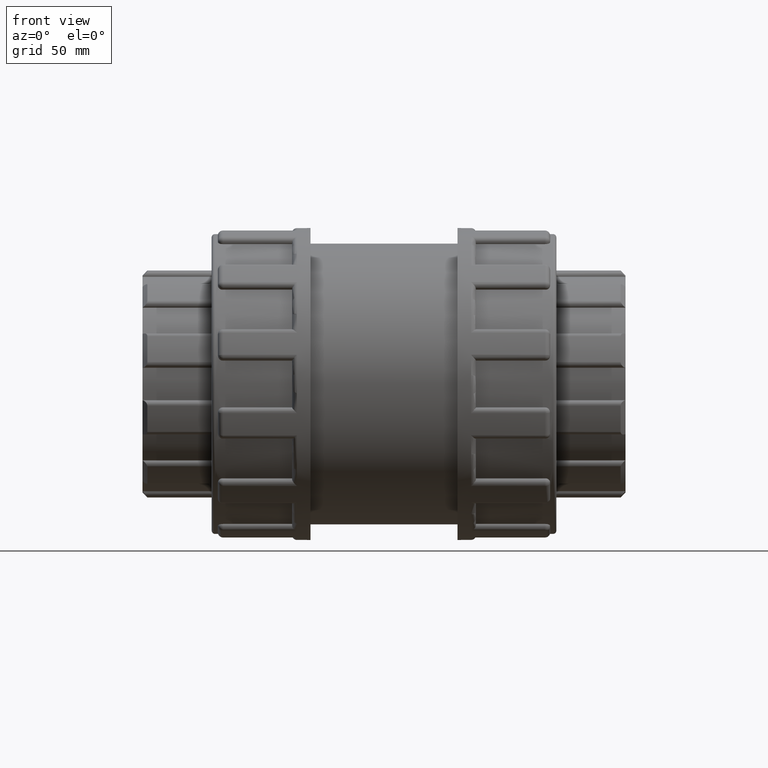
[diagram: clean part render]
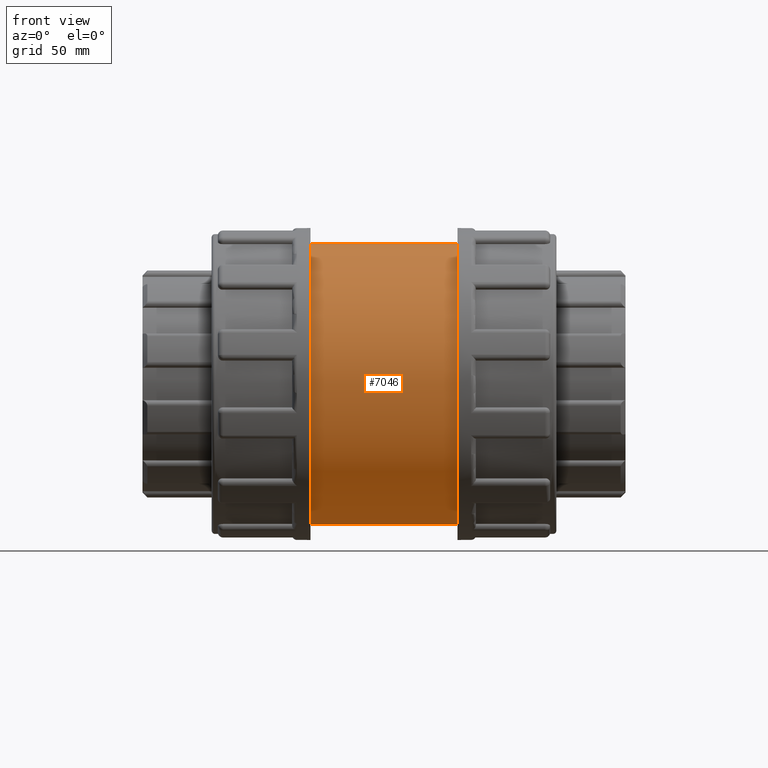
[diagram: same view with one face highlighted and labeled with its STEP entity id]
A machine part, front view. The second image highlights one B-rep face of the part: STEP entity #7046.
In plain terms, the highlighted cylindrical surface (bore or boss wall) has radius 62.55 mm, axis along (1, 0, 0).
Its self-contained STEP definition (entity closure, byte-faithful):
#103=B_SPLINE_CURVE_WITH_KNOTS('',3,(#11388,#11389,#11390,#11391,#11392,
#11393,#11394,#11395,#11396,#11397,#11398,#11399,#11400,#11401,#11402,#11403,
#11404,#11405,#11406,#11407,#11408,#11409,#11410,#11411,#11412,#11413,#11414,
#11415,#11416,#11417,#11418,#11419,#11420,#11421,#11422,#11423,#11424,#11425,
#11426,#11427,#11428,#11429,#11430,#11431,#11432,#11433,#11434,#11435,#11436,
#11437,#11438,#11439,#11440,#11441,#11442,#11443,#11444,#11445,#11446,#11447,
#11448,#11449,#11450,#11451,#11452,#11453),.UNSPECIFIED.,.T.,.F.,(4,2,2,
2,2,2,2,2,2,2,2,2,2,2,2,2,2,2,2,2,2,2,2,2,2,2,2,2,2,2,2,2,4),(0.,0.396085553925693,
0.792171107851386,1.18825666177708,1.58434221570277,1.98024406484291,2.37614591398306,
2.7720477631232,3.16794961226334,3.56385146140348,3.95975331054362,4.35565515968376,
4.75155700882391,5.1476425627496,5.54372811667529,5.93981367060098,6.33589922452668,
6.73198477845237,7.12807033237806,7.52415588630376,7.92024144022945,8.31614328936959,
8.71204513850973,9.10794698764987,9.50384883679001,9.89975068593016,10.2956525350703,
10.6915543842104,11.0874562333506,11.4835417872763,11.879627341202,12.2757128951277,
12.6717984490534),.UNSPECIFIED.);
#220=FACE_BOUND('',#1304,.T.);
#221=FACE_BOUND('',#1305,.T.);
#849=FACE_OUTER_BOUND('',#1303,.T.);
#1303=EDGE_LOOP('',(#6414));
#1304=EDGE_LOOP('',(#6415));
#1305=EDGE_LOOP('',(#6416));
#2621=CIRCLE('',#7997,62.55);
#2622=CIRCLE('',#7999,62.55);
#2820=VERTEX_POINT('',#11387);
#3265=VERTEX_POINT('',#14037);
#3266=VERTEX_POINT('',#14040);
#3584=EDGE_CURVE('',#2820,#2820,#103,.T.);
#4317=EDGE_CURVE('',#3265,#3265,#2621,.T.);
#4318=EDGE_CURVE('',#3266,#3266,#2622,.T.);
#6414=ORIENTED_EDGE('',*,*,#4317,.T.);
#6415=ORIENTED_EDGE('',*,*,#3584,.T.);
#6416=ORIENTED_EDGE('',*,*,#4318,.F.);
#6615=CYLINDRICAL_SURFACE('',#7998,62.55);
#7046=ADVANCED_FACE('',(#849,#220,#221),#6615,.T.);
#7997=AXIS2_PLACEMENT_3D('',#14038,#10292,#10293);
#7998=AXIS2_PLACEMENT_3D('',#14039,#10294,#10295);
#7999=AXIS2_PLACEMENT_3D('',#14041,#10296,#10297);
#10292=DIRECTION('center_axis',(1.,0.,0.));
#10293=DIRECTION('ref_axis',(0.,0.,-1.));
#10294=DIRECTION('center_axis',(1.,0.,0.));
#10295=DIRECTION('ref_axis',(0.,1.,0.));
#10296=DIRECTION('center_axis',(1.,0.,0.));
#10297=DIRECTION('ref_axis',(0.,0.,-1.));
#11387=CARTESIAN_POINT('',(0.,58.9727055509581,-20.85));
#11388=CARTESIAN_POINT('Ctrl Pts',(5.55111512312578E-16,58.9727055509581,
-20.85));
#11389=CARTESIAN_POINT('Ctrl Pts',(1.32028517975231,58.9727055509581,-20.85));
#11390=CARTESIAN_POINT('Ctrl Pts',(2.68208478270088,59.018275172654,-20.7225757041216));
#11391=CARTESIAN_POINT('Ctrl Pts',(5.38413719821223,59.2026364168163,-20.1898437177927));
#11392=CARTESIAN_POINT('Ctrl Pts',(6.72443306056534,59.3412410936729,-19.7846897113184));
#11393=CARTESIAN_POINT('Ctrl Pts',(9.28951688826712,59.6863464352873,-18.7178219864457));
#11394=CARTESIAN_POINT('Ctrl Pts',(10.5165408728601,59.8927485798528,-18.0552619907485));
#11395=CARTESIAN_POINT('Ctrl Pts',(12.7832973884401,60.3320511205532,-16.5280799096123));
#11396=CARTESIAN_POINT('Ctrl Pts',(13.8230273276124,60.5645045763377,-15.6633254478667));
#11397=CARTESIAN_POINT('Ctrl Pts',(15.6628986820225,61.0107389252661,-13.8234540934565));
#11398=CARTESIAN_POINT('Ctrl Pts',(16.5276017683508,61.2405468397487,-12.7839261783287));
#11399=CARTESIAN_POINT('Ctrl Pts',(18.0549696966679,61.6702917756197,-10.517055579247));
#11400=CARTESIAN_POINT('Ctrl Pts',(18.717748057584,61.8698377913596,-9.28971527474763));
#11401=CARTESIAN_POINT('Ctrl Pts',(19.7848608016904,62.2009923379269,-6.72400106561913));
#11402=CARTESIAN_POINT('Ctrl Pts',(20.1900426717661,62.3326119591373,-5.38340063918773));
#11403=CARTESIAN_POINT('Ctrl Pts',(20.7226856292414,62.5071707106192,-2.68125452814218));
#11404=CARTESIAN_POINT('Ctrl Pts',(20.85,62.55,-1.31967283046714));
#11405=CARTESIAN_POINT('Ctrl Pts',(20.85,62.55,1.31967283046714));
#11406=CARTESIAN_POINT('Ctrl Pts',(20.7226856292414,62.5071707106192,2.68125452814218));
#11407=CARTESIAN_POINT('Ctrl Pts',(20.1900426717661,62.3326119591373,5.38340063918773));
#11408=CARTESIAN_POINT('Ctrl Pts',(19.7848608016904,62.2009923379269,6.72400106561912));
#11409=CARTESIAN_POINT('Ctrl Pts',(18.717748057584,61.8698377913596,9.28971527474763));
#11410=CARTESIAN_POINT('Ctrl Pts',(18.0549696966679,61.6702917756197,10.517055579247));
#11411=CARTESIAN_POINT('Ctrl Pts',(16.5276017683508,61.2405468397487,12.7839261783287));
#11412=CARTESIAN_POINT('Ctrl Pts',(15.6628986820225,61.0107389252661,13.8234540934565));
#11413=CARTESIAN_POINT('Ctrl Pts',(13.8230273276124,60.5645045763377,15.6633254478667));
#11414=CARTESIAN_POINT('Ctrl Pts',(12.7832973884401,60.3320511205532,16.5280799096123));
#11415=CARTESIAN_POINT('Ctrl Pts',(10.5165408728601,59.8927485798528,18.0552619907485));
#11416=CARTESIAN_POINT('Ctrl Pts',(9.28951688826712,59.6863464352873,18.7178219864457));
#11417=CARTESIAN_POINT('Ctrl Pts',(6.72443306056534,59.3412410936729,19.7846897113184));
#11418=CARTESIAN_POINT('Ctrl Pts',(5.38413719821223,59.2026364168163,20.1898437177927));
#11419=CARTESIAN_POINT('Ctrl Pts',(2.68208478270088,59.018275172654,20.7225757041216));
#11420=CARTESIAN_POINT('Ctrl Pts',(1.32028517975231,58.9727055509581,20.85));
#11421=CARTESIAN_POINT('Ctrl Pts',(-1.32028517975231,58.9727055509581,20.85));
#11422=CARTESIAN_POINT('Ctrl Pts',(-2.68208478270087,59.018275172654,20.7225757041216));
#11423=CARTESIAN_POINT('Ctrl Pts',(-5.38413719821222,59.2026364168163,20.1898437177927));
#11424=CARTESIAN_POINT('Ctrl Pts',(-6.72443306056534,59.3412410936729,19.7846897113184));
#11425=CARTESIAN_POINT('Ctrl Pts',(-9.28951688826712,59.6863464352873,18.7178219864457));
#11426=CARTESIAN_POINT('Ctrl Pts',(-10.5165408728601,59.8927485798528,18.0552619907485));
#11427=CARTESIAN_POINT('Ctrl Pts',(-12.7832973884401,60.3320511205532,16.5280799096123));
#11428=CARTESIAN_POINT('Ctrl Pts',(-13.8230273276124,60.5645045763377,15.6633254478667));
#11429=CARTESIAN_POINT('Ctrl Pts',(-15.6628986820225,61.0107389252661,13.8234540934565));
#11430=CARTESIAN_POINT('Ctrl Pts',(-16.5276017683508,61.2405468397487,12.7839261783287));
#11431=CARTESIAN_POINT('Ctrl Pts',(-18.0549696966679,61.6702917756197,10.517055579247));
#11432=CARTESIAN_POINT('Ctrl Pts',(-18.717748057584,61.8698377913596,9.28971527474763));
#11433=CARTESIAN_POINT('Ctrl Pts',(-19.7848608016904,62.2009923379269,6.72400106561913));
#11434=CARTESIAN_POINT('Ctrl Pts',(-20.1900426717661,62.3326119591373,5.38340063918774));
#11435=CARTESIAN_POINT('Ctrl Pts',(-20.7226856292414,62.5071707106193,2.68125452814218));
#11436=CARTESIAN_POINT('Ctrl Pts',(-20.85,62.55,1.31967283046714));
#11437=CARTESIAN_POINT('Ctrl Pts',(-20.85,62.55,-1.31967283046714));
#11438=CARTESIAN_POINT('Ctrl Pts',(-20.7226856292414,62.5071707106192,-2.68125452814218));
#11439=CARTESIAN_POINT('Ctrl Pts',(-20.1900426717661,62.3326119591373,-5.38340063918773));
#11440=CARTESIAN_POINT('Ctrl Pts',(-19.7848608016904,62.2009923379269,-6.72400106561912));
#11441=CARTESIAN_POINT('Ctrl Pts',(-18.717748057584,61.8698377913596,-9.28971527474763));
#11442=CARTESIAN_POINT('Ctrl Pts',(-18.0549696966679,61.6702917756197,-10.517055579247));
#11443=CARTESIAN_POINT('Ctrl Pts',(-16.5276017683508,61.2405468397487,-12.7839261783287));
#11444=CARTESIAN_POINT('Ctrl Pts',(-15.6628986820226,61.0107389252661,-13.8234540934565));
#11445=CARTESIAN_POINT('Ctrl Pts',(-13.8230273276124,60.5645045763377,-15.6633254478667));
#11446=CARTESIAN_POINT('Ctrl Pts',(-12.7832973884401,60.3320511205532,-16.5280799096123));
#11447=CARTESIAN_POINT('Ctrl Pts',(-10.5165408728601,59.8927485798528,-18.0552619907485));
#11448=CARTESIAN_POINT('Ctrl Pts',(-9.28951688826713,59.6863464352873,-18.7178219864457));
#11449=CARTESIAN_POINT('Ctrl Pts',(-6.72443306056534,59.3412410936729,-19.7846897113184));
#11450=CARTESIAN_POINT('Ctrl Pts',(-5.38413719821222,59.2026364168163,-20.1898437177927));
#11451=CARTESIAN_POINT('Ctrl Pts',(-2.68208478270087,59.018275172654,-20.7225757041216));
#11452=CARTESIAN_POINT('Ctrl Pts',(-1.32028517975231,58.9727055509581,-20.85));
#11453=CARTESIAN_POINT('Ctrl Pts',(-2.77555756156289E-16,58.9727055509581,
-20.85));
#14037=CARTESIAN_POINT('',(-32.7,62.55,0.));
#14038=CARTESIAN_POINT('Origin',(-32.7,0.,0.));
#14039=CARTESIAN_POINT('Origin',(0.,0.,0.));
#14040=CARTESIAN_POINT('',(32.7,62.55,0.));
#14041=CARTESIAN_POINT('Origin',(32.7,0.,0.));